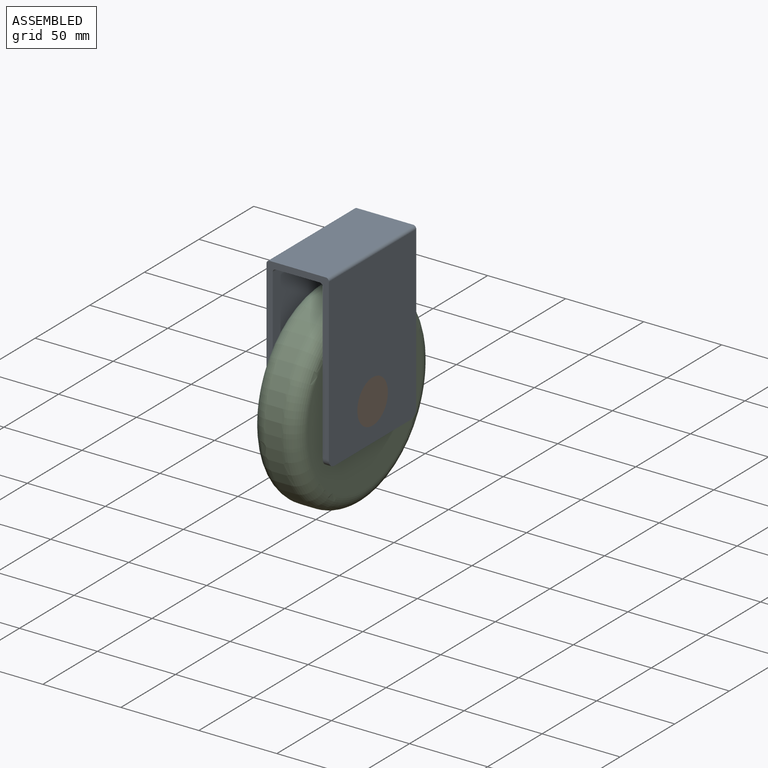
[diagram: assembled view]
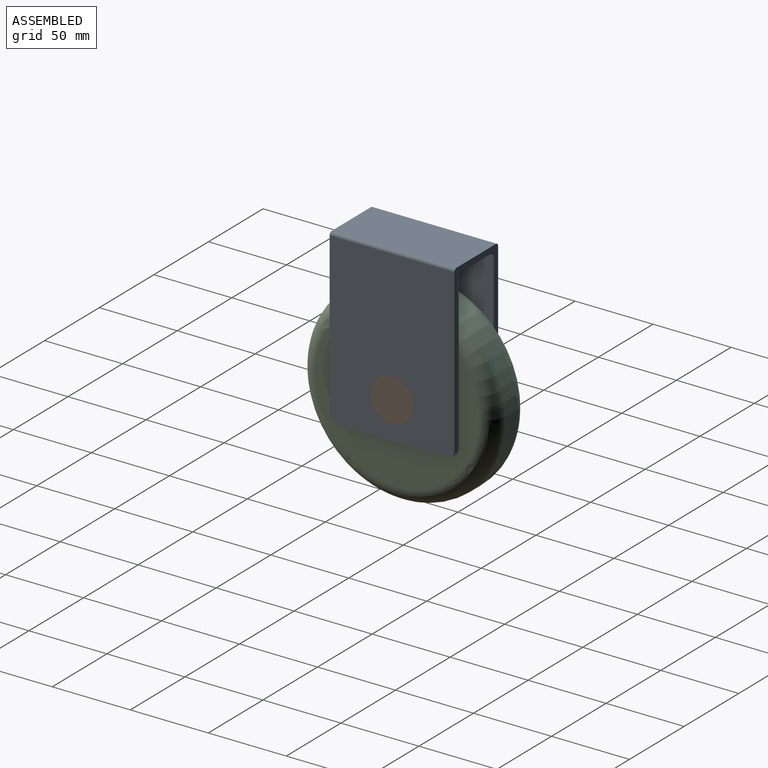
[diagram: assembled view, second angle]
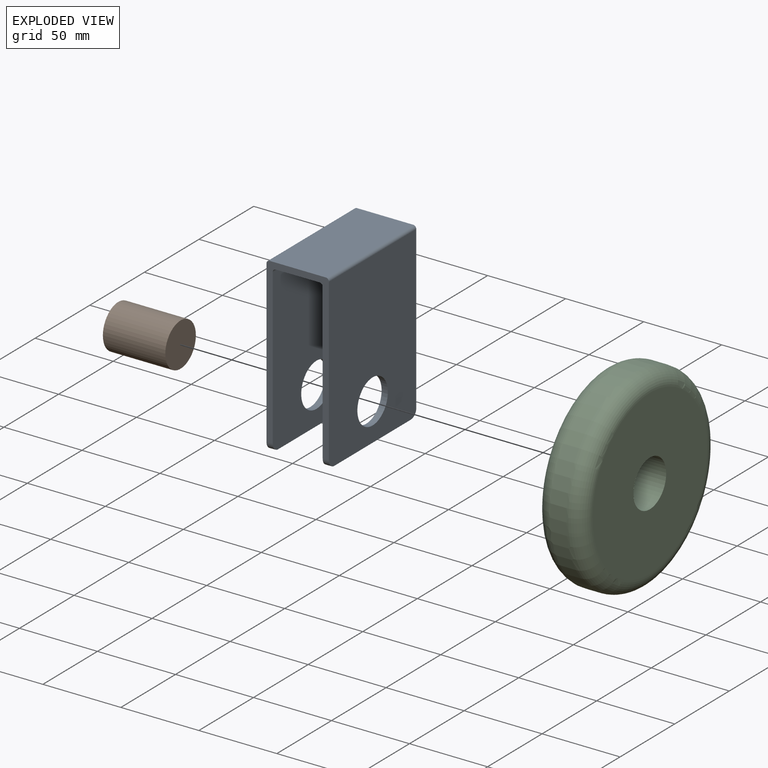
[diagram: exploded view]
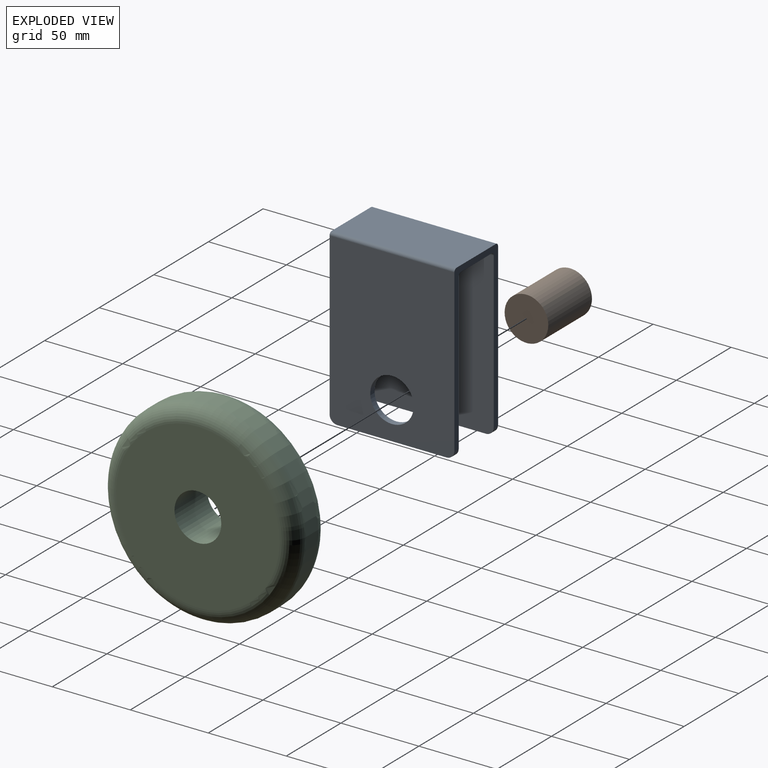
[diagram: exploded view, second angle]
ASSEMBLY  parts=3 mates=2
PART A: 20 faces, bbox 40x80x110.5 mm
  f0: plane 108.5x80mm, normal (-1,0,0), area 8057.9mm2, adj f1,f8,f9,f11,f12,f14,f19
  f1: plane 70x4mm, normal (0,0,-1), area 280mm2, adj f0,f2,f12,f14
  f2: plane 104.5x80mm, normal (1,0,0), area 7737.9mm2, adj f1,f8,f9,f11,f12,f14,f16
  f3: plane 80x28mm, normal (0,0,-1), area 2240mm2, adj f8,f9,f16,f17
  f4: plane 104.5x80mm, normal (-1,0,0), area 7737.9mm2, adj f5,f8,f9,f10,f13,f15,f17
  f5: plane 70x4mm, normal (0,0,-1), area 280mm2, adj f4,f6,f13,f15
  f6: plane 108.5x80mm, normal (1,0,0), area 8057.9mm2, adj f5,f8,f9,f10,f13,f15,f18
  f7: plane 80x36mm, normal (0,0,1), area 2880mm2, adj f8,f9,f18,f19
  f8: plane 105.5x40mm, normal (0,-1,0), area 972mm2, adj f0,f2,f3,f4,f6,f7,f14,f15
  f9: plane 105.5x40mm, normal (0,1,0), area 972mm2, adj f0,f2,f3,f4,f6,f7,f12,f13
  f10: cylinder r=13.95mm len=27.9mm, axis (1,0,0), area 350.6mm2, adj f4,f6
  f11: cylinder r=13.95mm len=27.9mm, axis (1,0,0), area 350.6mm2, adj f0,f2
  f12: cylinder r=5mm len=5mm, axis (1,0,0), area 31.4mm2, adj f0,f1,f2,f9
  f13: cylinder r=5mm len=5mm, axis (1,0,0), area 31.4mm2, adj f4,f5,f6,f9
  f14: cylinder r=5mm len=5mm, axis (-1,0,0), area 31.4mm2, adj f0,f1,f2,f8
  f15: cylinder r=5mm len=5mm, axis (-1,0,0), area 31.4mm2, adj f4,f5,f6,f8
  f16: cylinder r=2mm len=80mm, axis (0,1,0), area 251.3mm2, adj f2,f3,f8,f9
  f17: cylinder r=2mm len=80mm, axis (0,-1,0), area 251.3mm2, adj f3,f4,f8,f9
  f18: cylinder r=2mm len=80mm, axis (0,-1,0), area 251.3mm2, adj f6,f7,f8,f9
  f19: cylinder r=2mm len=80mm, axis (0,1,0), area 251.3mm2, adj f0,f7,f8,f9
PART B: 3 faces, bbox 28x40x28 mm
  f0: cylinder r=14mm len=40mm, axis (0,1,0), area 3518.6mm2, adj f1,f2
  f1: plane 28x28mm, normal (0,-1,0), area 615.8mm2, adj f0
  f2: plane 28x28mm, normal (0,1,0), area 615.8mm2, adj f0
PART C: 6 faces, bbox 135.3x30x135.3 mm
  f0: cylinder r=15mm len=30mm, axis (0,1,0), area 2827.4mm2, adj f2,f3
  f1: cylinder r=62.5mm len=125mm, axis (0,1,0), area 3927mm2, adj f4,f5
  f2: plane 105x105mm, normal (0,-1,0), area 7952.2mm2, adj f0,f5
  f3: plane 105x105mm, normal (0,1,0), area 7952.2mm2, adj f0,f4
  f4: torus R=52.5mm, axis (0,-1,0), area 5809.9mm2, adj f1,f3
  f5: torus R=52.5mm, axis (0,-1,0), area 5809.9mm2, adj f1,f2
PLACE A t=(-75.36,12.26,4.68)mm fixed
PLACE B rot(axis=(-0.58,-0.58,-0.58),120deg) t=(-79.24,-27.74,28.63)mm
PLACE C rot(axis=(0.26,-0.26,0.93),94.2deg) t=(-114.24,-27.74,28.63)mm
MATE fastened B.f0 <-> A.f10  axis (-1,0,0) through (-119.24,-27.74,28.63)mm
MATE revolute C.f1 <-> A.f10  axis (1,0,0) through (-84.24,-27.74,28.63)mm
